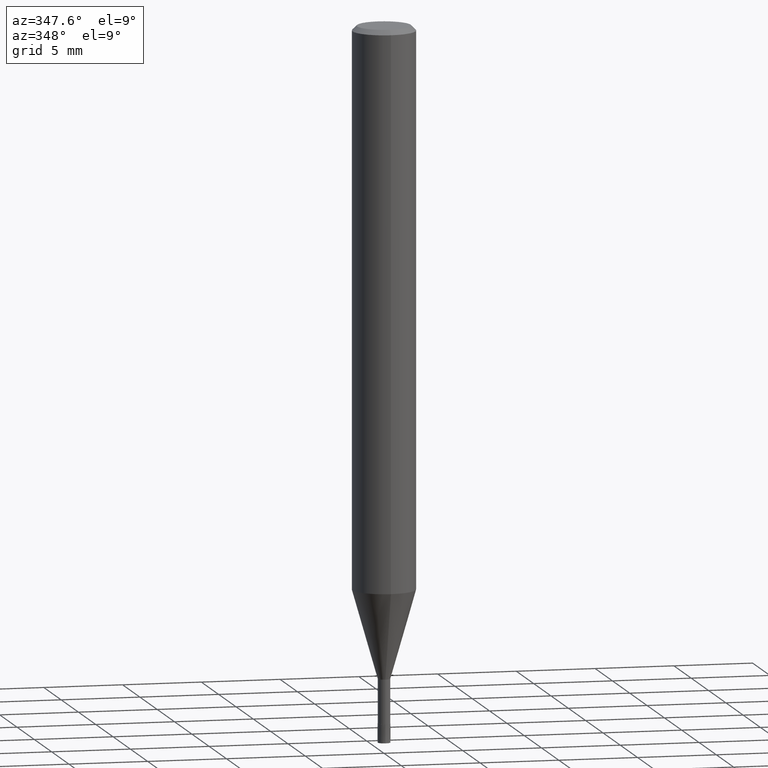
[diagram: clean part render]
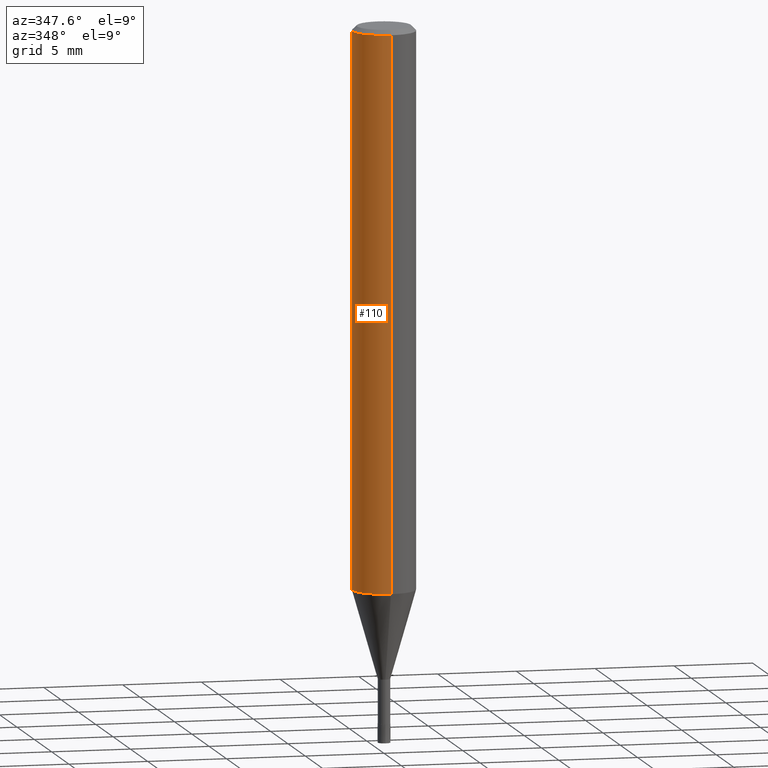
[diagram: same view with one face highlighted and labeled with its STEP entity id]
A machine part, auxiliary view. The second image highlights one B-rep face of the part: STEP entity #110.
In plain terms, the highlighted cylindrical surface (edge-blend (fillet) strip) has radius 2 mm, axis along (-0, -0, 1).
Its self-contained STEP definition (entity closure, byte-faithful):
#94=VERTEX_POINT('',#231);
#96=EDGE_CURVE('',#164,#134,#233,.T.);
#106=EDGE_CURVE('',#112,#94,#245,.T.);
#110=ADVANCED_FACE('',(#249),#250,.T.);
#112=VERTEX_POINT('',#252);
#120=EDGE_CURVE('',#94,#134,#261,.T.);
#134=VERTEX_POINT('',#278);
#164=VERTEX_POINT('',#313);
#192=EDGE_CURVE('',#164,#112,#344,.T.);
#231=CARTESIAN_POINT('',(0.0,2.0,-0.299999999999997));
#233=CIRCLE('',#380,2.0);
#245=CIRCLE('',#393,2.0);
#249=FACE_OUTER_BOUND('',#397,.T.);
#250=CYLINDRICAL_SURFACE('',#398,2.0);
#252=CARTESIAN_POINT('',(2.44921270764475E-016,-2.0,-0.299999999999997));
#261=LINE('',#413,#414);
#278=CARTESIAN_POINT('',(0.0,2.0,-35.385));
#313=CARTESIAN_POINT('',(2.44921270764475E-016,-2.0,-35.385));
#344=LINE('',#517,#518);
#380=AXIS2_PLACEMENT_3D('',#545,#546,#547);
#393=AXIS2_PLACEMENT_3D('',#562,#563,#564);
#397=EDGE_LOOP('',(#566,#567,#568,#569));
#398=AXIS2_PLACEMENT_3D('',#570,#571,#572);
#413=CARTESIAN_POINT('',(-2.44921270764475E-016,2.0,-17.8425));
#414=VECTOR('',#585,1.0);
#517=CARTESIAN_POINT('',(2.44921270764475E-016,-2.0,-17.8425));
#518=VECTOR('',#695,1.0);
#545=CARTESIAN_POINT('',(0.0,0.0,-35.385));
#546=DIRECTION('',(0.0,0.0,-1.0));
#547=DIRECTION('',(0.0,1.0,0.0));
#562=CARTESIAN_POINT('',(0.0,0.0,-0.299999999999997));
#563=DIRECTION('',(0.0,0.0,-1.0));
#564=DIRECTION('',(0.0,1.0,0.0));
#566=ORIENTED_EDGE('',*,*,#120,.T.);
#567=ORIENTED_EDGE('',*,*,#96,.F.);
#568=ORIENTED_EDGE('',*,*,#192,.T.);
#569=ORIENTED_EDGE('',*,*,#106,.T.);
#570=CARTESIAN_POINT('',(0.0,0.0,-17.8425));
#571=DIRECTION('',(-0.0,-0.0,1.0));
#572=DIRECTION('',(0.0,1.0,0.0));
#585=DIRECTION('',(0.0,0.0,-1.0));
#695=DIRECTION('',(-0.0,-0.0,1.0));